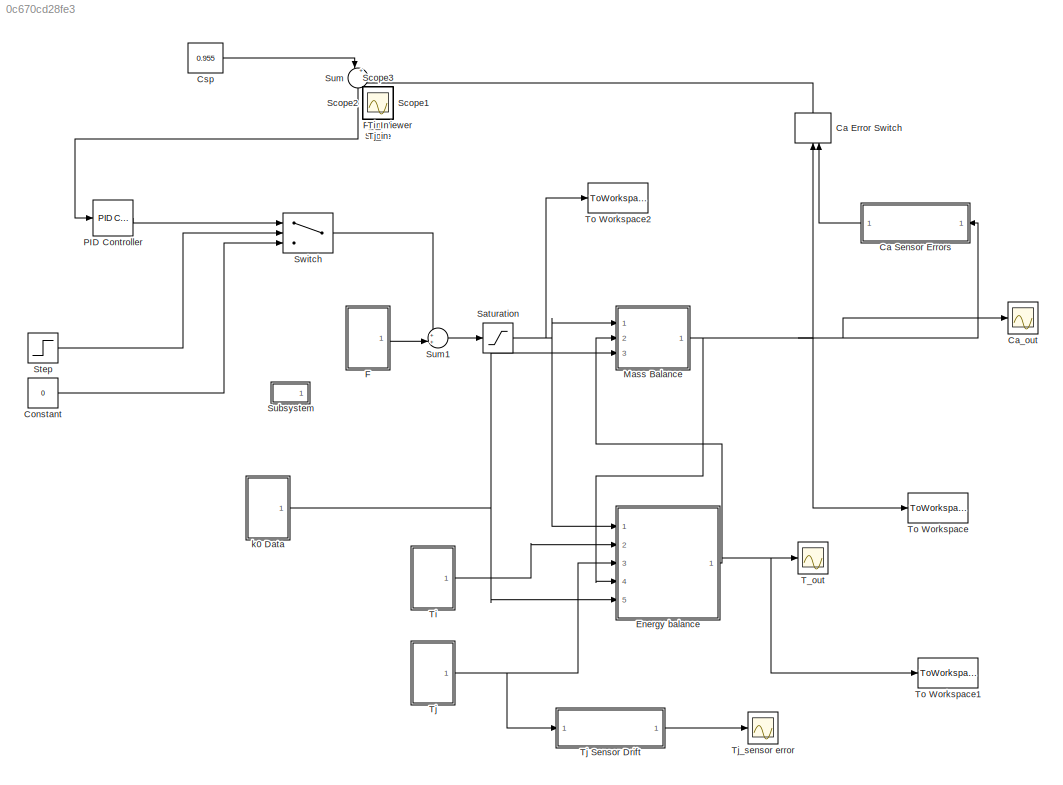
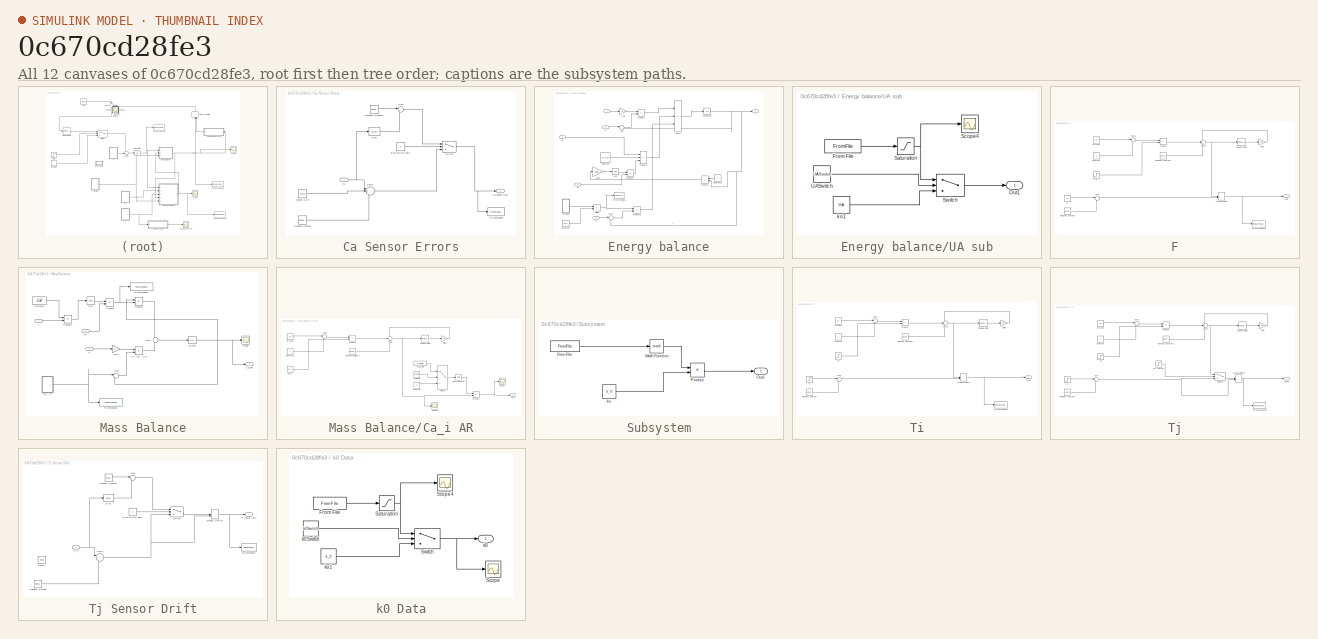
[diagram: thumbnail index - all 12 canvases of the model, root first then tree order]
MODEL slx_0c670cd28fe3
KIND model
CONFIG AbsTol = auto
CONFIG EnableMultiTasking = off
CONFIG FixedStep = auto
CONFIG MaxStep = auto
CONFIG MinStep = auto
CONFIG RelTol = 1e-3
CONFIG SampleTimeConstraint = Unconstrained
CONFIG Solver = VariableStepAuto
CONFIG SolverName = VariableStepAuto
CONFIG StartTime = 0.0
CONFIG StopTime = dur
BLOCK [ManualSwitch] Ca Error Switch
  CurrentSetting = 0
  NameLocation = right
BLOCK [SubSystem] Ca Sensor Errors
  Ports = [1, 1]
  RequestExecContextInheritance = off
BLOCK [Bias] Ca Sensor Errors/Bias
  Bias = 0.015
  SaturateOnIntegerOverflow = off
BLOCK [Constant] Ca Sensor Errors/Bias switch logic
  Value = 0
BLOCK [Inport] Ca Sensor Errors/Ca
BLOCK [Outport] Ca Sensor Errors/Ca_sensor fault
BLOCK [RandomNumber] Ca Sensor Errors/Random Number
  SampleTime = 0.1
  Variance = 0.0001
BLOCK [RandomNumber] Ca Sensor Errors/Random Number1
  SampleTime = 0.1
  Variance = 1*10^-6
BLOCK [Reference] Ca Sensor Errors/Sensor Drift  REF=simulink/Sources/Ramp
  Ports = [0, 1]
  SourceBlock = simulink/Sources/Ramp
  SourceProductBaseCode = SL
  SourceType = Ramp
BLOCK [Sum] Ca Sensor Errors/Sum
  Inputs = |++
  Ports = [2, 1]
BLOCK [Sum] Ca Sensor Errors/Sum2
  Inputs = |+|+|+
  Ports = [3, 1]
BLOCK [Switch] Ca Sensor Errors/Switch
  Criteria = u2 ~= 0
  InputSameDT = off
  SaturateOnIntegerOverflow = off
BLOCK [ToWorkspace] Ca Sensor Errors/To Workspace
  FixptAsFi = on
  MaxDataPoints = inf
  Ports = [1]
  SampleTime = t_samp
  SaveFormat = Timeseries
  VariableName = Ca_sensor
BLOCK [Scope] Ca_out
  Floating = off
  NumInputPorts = 1
  Ports = [1]
  ScopeSpecificationString = Simulink.scopes.TimeScopeBlockCfg('CurrentConfiguration', extmgr.ConfigurationSet(extmgr.Configuration('Core','General UI',true),extmgr.Configuration('Core','Source UI',true),extmgr.Configuration('Sources','WiredSimulink',true,'DataLoggingVariableName','ScopeData1'),extmgr.Configuration('Visuals','Time Domain',true,'SerializedDisplays',{struct('MinYLimReal','-0.11988','MaxYLimReal','1.08945','YLab...<+1425ch>
BLOCK [Constant] Constant
  Value = 0
BLOCK [Constant] Csp
  Value = 0.955
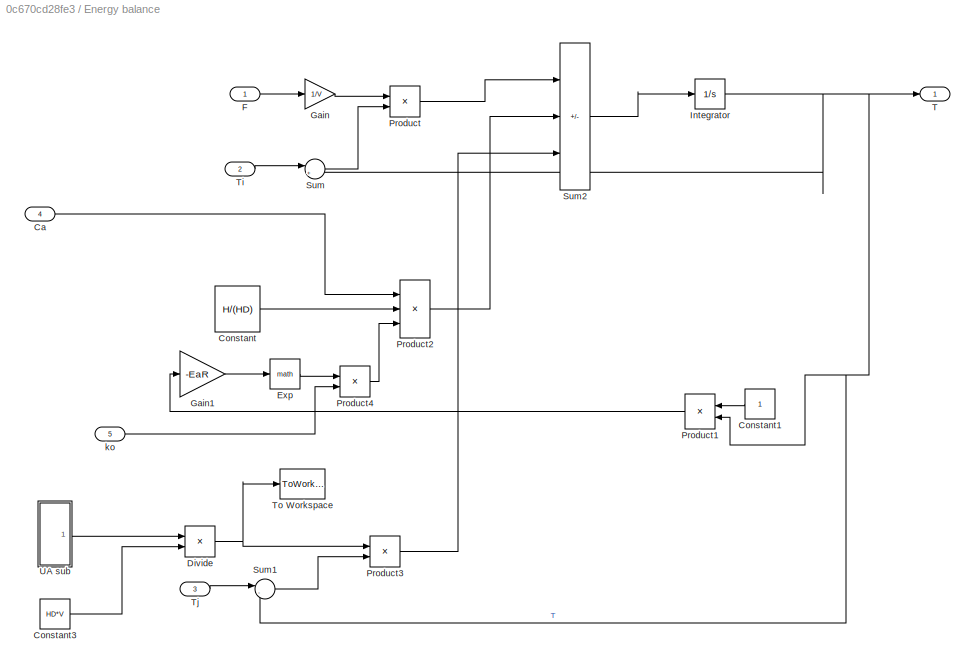
BLOCK [SubSystem] Energy balance
  Ports = [5, 1]
  RequestExecContextInheritance = off
BLOCK [Inport] Energy balance/Ca
  Port = 4
BLOCK [Constant] Energy balance/Constant
  Value = H/(HD)
BLOCK [Constant] Energy balance/Constant1
BLOCK [Constant] Energy balance/Constant3
  Value = HD*V
BLOCK [Product] Energy balance/Divide
  Inputs = */
  Ports = [2, 1]
BLOCK [Math] Energy balance/Exp
  Ports = [1, 1]
  SignedPower = on
BLOCK [Inport] Energy balance/F
BLOCK [Gain] Energy balance/Gain
  Gain = 1/V
BLOCK [Gain] Energy balance/Gain1
  Gain = -EaR
BLOCK [Integrator] Energy balance/Integrator
  InitialCondition = 312.4
  Ports = [1, 1]
BLOCK [Product] Energy balance/Product
  Ports = [2, 1]
BLOCK [Product] Energy balance/Product1
  Inputs = */
  Ports = [2, 1]
BLOCK [Product] Energy balance/Product2
  Inputs = 3
  Ports = [3, 1]
BLOCK [Product] Energy balance/Product3
  Ports = [2, 1]
BLOCK [Product] Energy balance/Product4
  Ports = [2, 1]
BLOCK [Sum] Energy balance/Sum
  Inputs = |+-
  Ports = [2, 1]
BLOCK [Sum] Energy balance/Sum1
  Inputs = |-+
  Ports = [2, 1]
BLOCK [Sum] Energy balance/Sum2
  IconShape = rectangular
  Inputs = |++-
  Ports = [3, 1]
BLOCK [Outport] Energy balance/T
BLOCK [Inport] Energy balance/Ti
  Port = 2
BLOCK [Inport] Energy balance/Tj
  Port = 3
BLOCK [ToWorkspace] Energy balance/To Workspace
  FixptAsFi = on
  MaxDataPoints = inf
  Ports = [1]
  SampleTime = t_samp
  SaveFormat = Timeseries
  VariableName = UA_rate
BLOCK [SubSystem] Energy balance/UA sub
  Ports = [0, 1]
  RequestExecContextInheritance = off
BLOCK [FromFile] Energy balance/UA sub/From File
  FileName = UAData.mat
  SampleTime = 0.01
BLOCK [Outport] Energy balance/UA sub/Out1
BLOCK [Saturate] Energy balance/UA sub/Saturation
  LowerLimit = 0
  UpperLimit = 60000
BLOCK [Scope] Energy balance/UA sub/Scope4
  Floating = off
  NumInputPorts = 1
  Ports = [1]
  ScopeSpecificationString = Simulink.scopes.TimeScopeBlockCfg('CurrentConfiguration', extmgr.ConfigurationSet(extmgr.Configuration('Core','General UI',true),extmgr.Configuration('Core','Source UI',true),extmgr.Configuration('Sources','WiredSimulink',true,'DataLoggingVariableName','ScopeData1'),extmgr.Configuration('Visuals','Time Domain',true,'SerializedDisplays',{struct('MinYLimReal','35245.31053','MaxYLimReal','51639.40994...<+1453ch>
BLOCK [Switch] Energy balance/UA sub/Switch
  Criteria = u2 > Threshold
  InputSameDT = off
  SaturateOnIntegerOverflow = off
BLOCK [Constant] Energy balance/UA sub/UASwitch
  Value = UASwitch
BLOCK [Constant] Energy balance/UA sub/ko1
  Value = HA
BLOCK [Inport] Energy balance/ko
  Port = 5
BLOCK [SubSystem] F
  Ports = [0, 1]
  RequestExecContextInheritance = off
BLOCK [Constant] F/AR const
  Value = 0.9
BLOCK [Constant] F/Constant
BLOCK [Constant] F/F
  Value = 50
BLOCK [Step] F/F1
  After = 50
  Before = 50
  SampleTime = 0
  Time = 0
BLOCK [Outport] F/FOut
BLOCK [Gain] F/Gain
  Gain = 0.9
BLOCK [ManualSwitch] F/Manual Switch
BLOCK [Product] F/Product
  Ports = [2, 1]
BLOCK [RandomNumber] F/Random Number
  SampleTime = 0.1
  Variance = 1.9
BLOCK [RandomNumber] F/Random Number1
  SampleTime = 0.1
  Variance = 1.9
BLOCK [Sum] F/Sum
  Inputs = |++
  Ports = [2, 1]
BLOCK [Sum] F/Sum1
  Inputs = |-+
  Ports = [2, 1]
BLOCK [Sum] F/Sum2
  Inputs = +++
  Ports = [3, 1]
BLOCK [Reference] F/Tapped Delay  REF=simulink/Discrete/Tapped Delay
  Ports = [1, 1]
  SourceBlock = simulink/Discrete/Tapped Delay
  SourceProductBaseCode = SL
  SourceType = Tapped Delay Line
BLOCK [ToWorkspace] F/To Workspace2
  FixptAsFi = on
  MaxDataPoints = inf
  Ports = [1]
  SampleTime = t_samp
  SaveFormat = Timeseries
  VariableName = F_in
BLOCK [Scope] F_in Viewer
  Floating = off
  IOType = viewer
  NumInputPorts = 1
  Ports = []
  ScopeSpecificationString = Simulink.scopes.TimeScopeBlockCfg('CurrentConfiguration', extmgr.ConfigurationSet(extmgr.Configuration('Core','General UI',true),extmgr.Configuration('Core','Source UI',true),extmgr.Configuration('Sources','WiredSimulink',true,'DataLoggingVariableName','ScopeData1'),extmgr.Configuration('Visuals','Time Domain',true,'SerializedDisplays',{struct('MinYLimReal','37.9889','MaxYLimReal','62.35149','YLab...<+1389ch>
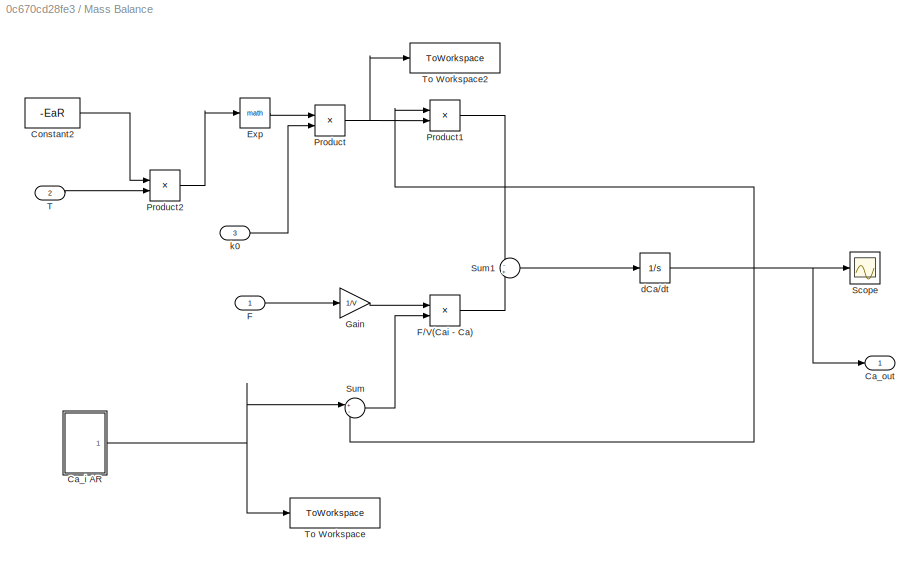
BLOCK [SubSystem] Mass Balance
  Ports = [3, 1]
  RequestExecContextInheritance = off
BLOCK [SubSystem] Mass Balance/Ca_i AR
  Ports = [0, 1]
  RequestExecContextInheritance = off
BLOCK [Constant] Mass Balance/Ca_i AR/AR const
  Value = 0.9
BLOCK [Constant] Mass Balance/Ca_i AR/CaSwitch
  Value = CaSwitch
BLOCK [Constant] Mass Balance/Ca_i AR/Ca_i
  Value = Ca_i
BLOCK [Constant] Mass Balance/Ca_i AR/Constant
  Value = 0
BLOCK [Constant] Mass Balance/Ca_i AR/Constant1
BLOCK [FromFile] Mass Balance/Ca_i AR/From File
  FileName = CaData.mat
  SampleTime = 0.01
BLOCK [Gain] Mass Balance/Ca_i AR/Gain2
  Gain = 0.9
BLOCK [Math] Mass Balance/Ca_i AR/Math Function
  Ports = [1, 1]
  SignedPower = on
BLOCK [Outport] Mass Balance/Ca_i AR/Out1
BLOCK [Product] Mass Balance/Ca_i AR/Product
  Ports = [2, 1]
BLOCK [Product] Mass Balance/Ca_i AR/Product1
  Ports = [2, 1]
BLOCK [RandomNumber] Mass Balance/Ca_i AR/Random Number1
  SampleTime = 0.1
  Variance = 0.00002
BLOCK [Scope] Mass Balance/Ca_i AR/Scope
  Floating = off
  NumInputPorts = 1
  Ports = [1]
  ScopeSpecificationString = Simulink.scopes.TimeScopeBlockCfg('CurrentConfiguration', extmgr.ConfigurationSet(extmgr.Configuration('Core','General UI',true),extmgr.Configuration('Core','Source UI',true),extmgr.Configuration('Sources','WiredSimulink',true,'DataLoggingVariableName','ScopeData1'),extmgr.Configuration('Visuals','Time Domain',true,'SerializedDisplays',{struct('MinYLimReal','0.93746','MaxYLimReal','1.05355','YLabe...<+1393ch>
BLOCK [Scope] Mass Balance/Ca_i AR/Scope1
  Floating = off
  NumInputPorts = 1
  Ports = [1]
  ScopeSpecificationString = Simulink.scopes.TimeScopeBlockCfg('CurrentConfiguration', extmgr.ConfigurationSet(extmgr.Configuration('Core','General UI',true),extmgr.Configuration('Core','Source UI',true),extmgr.Configuration('Sources','WiredSimulink',true,'DataLoggingVariableName','ScopeData3'),extmgr.Configuration('Visuals','Time Domain',true,'SerializedDisplays',{struct('MinYLimReal','0.95392','MaxYLimReal','1.05172','YLabe...<+1389ch>
BLOCK [Sum] Mass Balance/Ca_i AR/Sum2
  Inputs = |-+
  Ports = [2, 1]
BLOCK [Sum] Mass Balance/Ca_i AR/Sum3
  Inputs = +++
  Ports = [3, 1]
BLOCK [Switch] Mass Balance/Ca_i AR/Switch
  Criteria = u2 > Threshold
  InputSameDT = off
  SaturateOnIntegerOverflow = off
BLOCK [Reference] Mass Balance/Ca_i AR/Tapped Delay  REF=simulink/Discrete/Tapped Delay
  Ports = [1, 1]
  SourceBlock = simulink/Discrete/Tapped Delay
  SourceProductBaseCode = SL
  SourceType = Tapped Delay Line
BLOCK [Outport] Mass Balance/Ca_out
BLOCK [Constant] Mass Balance/Constant2
  Value = -EaR
BLOCK [Math] Mass Balance/Exp
  Ports = [1, 1]
  SignedPower = on
BLOCK [Inport] Mass Balance/F
BLOCK [Product] Mass Balance/F//V(Cai - Ca)
  Ports = [2, 1]
BLOCK [Gain] Mass Balance/Gain
  Gain = 1/V
BLOCK [Product] Mass Balance/Product
  Ports = [2, 1]
BLOCK [Product] Mass Balance/Product1
  Ports = [2, 1]
BLOCK [Product] Mass Balance/Product2
  Inputs = */
  Ports = [2, 1]
BLOCK [Scope] Mass Balance/Scope
  Floating = off
  NumInputPorts = 1
  Ports = [1]
  ScopeSpecificationString = Simulink.scopes.TimeScopeBlockCfg('CurrentConfiguration', extmgr.ConfigurationSet(extmgr.Configuration('Core','General UI',true),extmgr.Configuration('Core','Source UI',true),extmgr.Configuration('Sources','WiredSimulink',true),extmgr.Configuration('Visuals','Time Domain',true,'SerializedDisplays',{struct('MinYLimReal','-0.80257','MaxYLimReal','7.22317','YLabelReal','','MinYLimMag','0.00000','MaxY...<+1330ch>
BLOCK [Sum] Mass Balance/Sum
  Inputs = +-
  Ports = [2, 1]
BLOCK [Sum] Mass Balance/Sum1
  Inputs = -+
  Ports = [2, 1]
BLOCK [Inport] Mass Balance/T
  Port = 2
BLOCK [ToWorkspace] Mass Balance/To Workspace
  MaxDataPoints = inf
  Ports = [1]
  SampleTime = t_samp
  SaveFormat = Timeseries
  VariableName = Ca_in
BLOCK [ToWorkspace] Mass Balance/To Workspace2
  FixptAsFi = on
  MaxDataPoints = inf
  Ports = [1]
  SampleTime = t_samp
  SaveFormat = Timeseries
  VariableName = k_rate
BLOCK [Integrator] Mass Balance/dCa//dt
  InitialCondition = 0.952
  Ports = [1, 1]
BLOCK [Inport] Mass Balance/k0
  Port = 3
BLOCK [Reference] PID Controller  REF=simulink/Continuous/PID Controller
  Ports = [1, 1]
  SourceBlock = simulink/Continuous/PID Controller
  SourceProductBaseCode = SL
  SourceType = PID 1dof
BLOCK [Saturate] Saturation
  LowerLimit = 0
  UpperLimit = 5000
BLOCK [Scope] Scope
  Floating = off
  IOType = viewer
  NumInputPorts = 1
  Ports = []
  ScopeSpecificationString = Simulink.scopes.TimeScopeBlockCfg('CurrentConfiguration', extmgr.ConfigurationSet(extmgr.Configuration('Core','General UI',true),extmgr.Configuration('Core','Source UI',true),extmgr.Configuration('Sources','WiredSimulink',true,'DataLoggingVariableName','ScopeData1'),extmgr.Configuration('Visuals','Time Domain',true,'SerializedDisplays',{struct('MinYLimReal','-4736.65689','MaxYLimReal','42769.73309...<+1444ch>
BLOCK [Scope] Scope1
  Floating = off
  IOType = viewer
  NumInputPorts = 1
  Ports = []
  ScopeSpecificationString = Simulink.scopes.TimeScopeBlockCfg('CurrentConfiguration', extmgr.ConfigurationSet(extmgr.Configuration('Core','General UI',true),extmgr.Configuration('Core','Source UI',true),extmgr.Configuration('Sources','WiredSimulink',true,'DataLoggingVariableName','ScopeData3'),extmgr.Configuration('Visuals','Time Domain',true,'SerializedDisplays',{struct('MinYLimReal','-0.16351','MaxYLimReal','1.12454','YLab...<+1453ch>
BLOCK [Scope] Scope2
  Floating = off
  IOType = viewer
  NumInputPorts = 1
  Ports = []
  ScopeSpecificationString = Simulink.scopes.TimeScopeBlockCfg('CurrentConfiguration', extmgr.ConfigurationSet(extmgr.Configuration('Core','General UI',true),extmgr.Configuration('Core','Source UI',true),extmgr.Configuration('Sources','WiredSimulink',true,'DataLoggingVariableName','ScopeData1'),extmgr.Configuration('Visuals','Time Domain',true,'SerializedDisplays',{struct('MinYLimReal','-609.27013','MaxYLimReal','5623.25224',...<+1441ch>
BLOCK [Scope] Scope3
  Floating = off
  IOType = viewer
  NumInputPorts = 1
  Ports = []
  ScopeSpecificationString = Simulink.scopes.TimeScopeBlockCfg('CurrentConfiguration', extmgr.ConfigurationSet(extmgr.Configuration('Core','General UI',true),extmgr.Configuration('Core','Source UI',true),extmgr.Configuration('Sources','WiredSimulink',true,'DataLoggingVariableName','ScopeData1'),extmgr.Configuration('Visuals','Time Domain',true,'SerializedDisplays',{struct('MinYLimReal','0.94239','MaxYLimReal','1.02794','YLabe...<+1385ch>
BLOCK [Step] Step
  Before = -1
  SampleTime = 0
  Time = 0
BLOCK [SubSystem] Subsystem
  Ports = [0, 1]
  RequestExecContextInheritance = off
BLOCK [FromFile] Subsystem/From File
  FileName = k0Data.mat
  SampleTime = 0.01
BLOCK [Math] Subsystem/Math Function
  Ports = [1, 1]
  SignedPower = on
BLOCK [Outport] Subsystem/Out1
BLOCK [Product] Subsystem/Product
  Ports = [2, 1]
BLOCK [Constant] Subsystem/ko
  Value = k_0
BLOCK [Sum] Sum
  Inputs = |+-
  NameLocation = left
  Ports = [2, 1]
BLOCK [Sum] Sum1
  Inputs = ++|
  Ports = [2, 1]
BLOCK [Switch] Switch
  Criteria = u2 > Threshold
  InputSameDT = off
  SaturateOnIntegerOverflow = off
BLOCK [Scope] T_out
  Floating = off
  NumInputPorts = 1
  Ports = [1]
  ScopeSpecificationString = Simulink.scopes.TimeScopeBlockCfg('CurrentConfiguration', extmgr.ConfigurationSet(extmgr.Configuration('Core','General UI',true),extmgr.Configuration('Core','Source UI',true),extmgr.Configuration('Sources','WiredSimulink',true,'DataLoggingVariableName','ScopeData2'),extmgr.Configuration('Visuals','Time Domain',true,'SerializedDisplays',{struct('MinYLimReal','264.64039','MaxYLimReal','591.58021','Y...<+1460ch>
BLOCK [SubSystem] Ti
  Ports = [0, 1]
  RequestExecContextInheritance = off
BLOCK [Constant] Ti/AR const
  Value = 0.9
BLOCK [Constant] Ti/Constant
BLOCK [Gain] Ti/Gain
  Gain = 0.9
BLOCK [ManualSwitch] Ti/Manual Switch
BLOCK [Product] Ti/Product
  Ports = [2, 1]
BLOCK [RandomNumber] Ti/Random Number
  SampleTime = 0.1
  Variance = 0.475
BLOCK [RandomNumber] Ti/Random Number1
  SampleTime = 0.1
  Variance = 0.475
BLOCK [Sum] Ti/Sum
  Inputs = |++
  Ports = [2, 1]
BLOCK [Sum] Ti/Sum1
  Inputs = |-+
  Ports = [2, 1]
BLOCK [Sum] Ti/Sum2
  Inputs = +++
  Ports = [3, 1]
BLOCK [Reference] Ti/Tapped Delay  REF=simulink/Discrete/Tapped Delay
  Ports = [1, 1]
  SourceBlock = simulink/Discrete/Tapped Delay
  SourceProductBaseCode = SL
  SourceType = Tapped Delay Line
BLOCK [Step] Ti/Ti
  After = 350
  Before = 350
  SampleTime = 0
  Time = 0
BLOCK [Step] Ti/Ti1
  After = 350
  Before = 350
  SampleTime = 0
  Time = 0
BLOCK [Outport] Ti/Ti_Out
BLOCK [ToWorkspace] Ti/To Workspace2
  FixptAsFi = on
  MaxDataPoints = inf
  Ports = [1]
  SampleTime = t_samp
  SaveFormat = Timeseries
  VariableName = Ti_in
BLOCK [Scope] Ti_In
  Floating = off
  IOType = viewer
  NumInputPorts = 1
  Ports = []
  ScopeSpecificationString = Simulink.scopes.TimeScopeBlockCfg('CurrentConfiguration', extmgr.ConfigurationSet(extmgr.Configuration('Core','General UI',true),extmgr.Configuration('Core','Source UI',true),extmgr.Configuration('Sources','WiredSimulink',true,'DataLoggingVariableName','ScopeData1'),extmgr.Configuration('Visuals','Time Domain',true,'SerializedDisplays',{struct('MinYLimReal','342.89797','MaxYLimReal','357.97003','Y...<+1428ch>
BLOCK [SubSystem] Tj
  Ports = [0, 1]
  RequestExecContextInheritance = off
BLOCK [SubSystem] Tj Sensor Drift
  Ports = [1, 1]
  RequestExecContextInheritance = off
BLOCK [Bias] Tj Sensor Drift/Bias
  Bias = 0.5
  SaturateOnIntegerOverflow = off
BLOCK [Constant] Tj Sensor Drift/Bias switch logic
  Value = 0
BLOCK [ManualSwitch] Tj Sensor Drift/Manual Switch
  CurrentSetting = 0
BLOCK [Reference] Tj Sensor Drift/Ramp  REF=simulink/Sources/Ramp
  Ports = [0, 1]
  SourceBlock = simulink/Sources/Ramp
  SourceProductBaseCode = SL
  SourceType = Ramp
BLOCK [RandomNumber] Tj Sensor Drift/Random Number
  SampleTime = 0.1
  Variance = 0.05
BLOCK [RandomNumber] Tj Sensor Drift/Random Number1
  SampleTime = 0.1
  Variance = 0.05
BLOCK [Sum] Tj Sensor Drift/Sum
  Inputs = |++
  Ports = [2, 1]
BLOCK [Sum] Tj Sensor Drift/Sum2
  Inputs = |+|+|+
  Ports = [3, 1]
BLOCK [Switch] Tj Sensor Drift/Switch
  Criteria = u2 ~= 0
  InputSameDT = off
  SaturateOnIntegerOverflow = off
BLOCK [Inport] Tj Sensor Drift/Tj_in
BLOCK [Outport] Tj Sensor Drift/Tj_sensor fault
BLOCK [ToWorkspace] Tj Sensor Drift/To Workspace
  FixptAsFi = on
  MaxDataPoints = inf
  Ports = [1]
  SampleTime = t_samp
  SaveFormat = Timeseries
  VariableName = Tj_sensor
BLOCK [Constant] Tj/AR const
  Value = 0.9
BLOCK [Constant] Tj/Constant
BLOCK [Step] Tj/Err Criteria
  SampleTime = 0
  Time = 0
BLOCK [Gain] Tj/Gain
  Gain = 0.9
BLOCK [ManualSwitch] Tj/Manual Switch
BLOCK [Product] Tj/Product
  Ports = [2, 1]
BLOCK [RandomNumber] Tj/Random Number
  SampleTime = 0.1
  Variance = 0.005
BLOCK [RandomNumber] Tj/Random Number1
  SampleTime = 0.1
  Variance = 0.005
BLOCK [Sum] Tj/Sum
  Inputs = |++
  Ports = [2, 1]
BLOCK [Sum] Tj/Sum1
  Inputs = |-+
  Ports = [2, 1]
BLOCK [Sum] Tj/Sum2
  Inputs = +++
  Ports = [3, 1]
BLOCK [Switch] Tj/Switch1
  Criteria = u2 > Threshold
  InputSameDT = off
  SaturateOnIntegerOverflow = off
BLOCK [Reference] Tj/Tapped Delay  REF=simulink/Discrete/Tapped Delay
  Ports = [1, 1]
  SourceBlock = simulink/Discrete/Tapped Delay
  SourceProductBaseCode = SL
  SourceType = Tapped Delay Line
BLOCK [Step] Tj/Tj
  After = 290
  Before = 290
  SampleTime = 0
  Time = 10
BLOCK [Step] Tj/Tj1
  After = Tj_o
  Before = Tj_i
  SampleTime = 0
  Time = t_Tj
BLOCK [Outport] Tj/Tj_Out
BLOCK [ToWorkspace] Tj/To Workspace2
  FixptAsFi = on
  MaxDataPoints = inf
  Ports = [1]
  SampleTime = 0.1
  SaveFormat = Timeseries
  VariableName = Tj_in
BLOCK [Scope] Tj_in
  Floating = off
  IOType = viewer
  NumInputPorts = 1
  Ports = []
  ScopeSpecificationString = Simulink.scopes.TimeScopeBlockCfg('CurrentConfiguration', extmgr.ConfigurationSet(extmgr.Configuration('Core','General UI',true),extmgr.Configuration('Core','Source UI',true),extmgr.Configuration('Sources','WiredSimulink',true,'DataLoggingVariableName','ScopeData2'),extmgr.Configuration('Visuals','Time Domain',true,'SerializedDisplays',{struct('MinYLimReal','286.51622','MaxYLimReal','293.36189','Y...<+1431ch>
BLOCK [Scope] Tj_sensor error
  Floating = off
  NumInputPorts = 1
  Ports = [1]
  ScopeSpecificationString = Simulink.scopes.TimeScopeBlockCfg('CurrentConfiguration', extmgr.ConfigurationSet(extmgr.Configuration('Core','General UI',true),extmgr.Configuration('Core','Source UI',true),extmgr.Configuration('Sources','WiredSimulink',true,'DataLoggingVariableName','ScopeData2'),extmgr.Configuration('Visuals','Time Domain',true,'SerializedDisplays',{struct('MinYLimReal','285.41455','MaxYLimReal','294.42502','Y...<+1442ch>
BLOCK [ToWorkspace] To Workspace
  FixptAsFi = on
  MaxDataPoints = inf
  Ports = [1]
  SampleTime = t_samp
  SaveFormat = Timeseries
  VariableName = Ca_out
BLOCK [ToWorkspace] To Workspace1
  FixptAsFi = on
  MaxDataPoints = inf
  Ports = [1]
  SampleTime = t_samp
  SaveFormat = Timeseries
  VariableName = T_out
BLOCK [ToWorkspace] To Workspace2
  FixptAsFi = on
  MaxDataPoints = inf
  Ports = [1]
  SampleTime = t_samp
  SaveFormat = Timeseries
  VariableName = F_crt
BLOCK [SubSystem] k0 Data
  Ports = [0, 1]
  RequestExecContextInheritance = off
BLOCK [FromFile] k0 Data/From File
  FileName = k0Data.mat
  SampleTime = 0.01
BLOCK [Saturate] k0 Data/Saturation
  LowerLimit = 0
  UpperLimit = 10e10
BLOCK [Scope] k0 Data/Scope
  Floating = off
  NumInputPorts = 1
  Ports = [1]
  ScopeSpecificationString = Simulink.scopes.TimeScopeBlockCfg('CurrentConfiguration', extmgr.ConfigurationSet(extmgr.Configuration('Core','General UI',true),extmgr.Configuration('Core','Source UI',true),extmgr.Configuration('Sources','WiredSimulink',true,'DataLoggingVariableName','ScopeData2'),extmgr.Configuration('Visuals','Time Domain',true,'SerializedDisplays',{struct('MinYLimReal','62000000000.00000','MaxYLimReal','82000...<+1472ch>
BLOCK [Scope] k0 Data/Scope4
  Floating = off
  NumInputPorts = 1
  Ports = [1]
  ScopeSpecificationString = Simulink.scopes.TimeScopeBlockCfg('CurrentConfiguration', extmgr.ConfigurationSet(extmgr.Configuration('Core','General UI',true),extmgr.Configuration('Core','Source UI',true),extmgr.Configuration('Sources','WiredSimulink',true,'DataLoggingVariableName','ScopeData1'),extmgr.Configuration('Visuals','Time Domain',true,'SerializedDisplays',{struct('MinYLimReal','2162166966.69649','MaxYLimReal','797597...<+1471ch>
BLOCK [Switch] k0 Data/Switch
  Criteria = u2 > Threshold
  InputSameDT = off
  SaturateOnIntegerOverflow = off
BLOCK [Outport] k0 Data/k0
BLOCK [Constant] k0 Data/k0Switch
  Value = k0Switch
BLOCK [Constant] k0 Data/ko1
  Value = k_0
LINE Ca Error Switch:1 -> Sum:2
LINE Ca Sensor Errors/Bias switch logic:1 -> Ca Sensor Errors/Switch:2
LINE Ca Sensor Errors/Bias:1 -> Ca Sensor Errors/Sum:2
NET Ca Sensor Errors/Ca:1 -> Ca Sensor Errors/Bias:1, Ca Sensor Errors/Sum2:1
LINE Ca Sensor Errors/Random Number1:1 -> Ca Sensor Errors/Sum:1
LINE Ca Sensor Errors/Random Number:1 -> Ca Sensor Errors/Sum2:3
LINE Ca Sensor Errors/Sensor Drift:1 -> Ca Sensor Errors/Sum2:2
LINE Ca Sensor Errors/Sum2:1 -> Ca Sensor Errors/Switch:3
LINE Ca Sensor Errors/Sum:1 -> Ca Sensor Errors/Switch:1
NET Ca Sensor Errors/Switch:1 -> Ca Sensor Errors/Ca_sensor fault:1, Ca Sensor Errors/To Workspace:1
LINE Ca Sensor Errors:1 -> Ca Error Switch:2
LINE Constant:1 -> Switch:3
LINE Csp:1 -> Sum:1
LINE Energy balance/Ca:1 -> Energy balance/Product2:1
LINE Energy balance/Constant1:1 -> Energy balance/Product1:1
LINE Energy balance/Constant3:1 -> Energy balance/Divide:2
LINE Energy balance/Constant:1 -> Energy balance/Product2:2
NET Energy balance/Divide:1 -> Energy balance/Product3:1, Energy balance/To Workspace:1
LINE Energy balance/Exp:1 -> Energy balance/Product4:1
LINE Energy balance/F:1 -> Energy balance/Gain:1
LINE Energy balance/Gain1:1 -> Energy balance/Exp:1
LINE Energy balance/Gain:1 -> Energy balance/Product:1
NET Energy balance/Integrator:1 -> Energy balance/Product1:2, Energy balance/Sum1:2, Energy balance/Sum:2, Energy balance/T:1
LINE Energy balance/Product1:1 -> Energy balance/Gain1:1
LINE Energy balance/Product2:1 -> Energy balance/Sum2:2
LINE Energy balance/Product3:1 -> Energy balance/Sum2:3
LINE Energy balance/Product4:1 -> Energy balance/Product2:3
LINE Energy balance/Product:1 -> Energy balance/Sum2:1
LINE Energy balance/Sum1:1 -> Energy balance/Product3:2
LINE Energy balance/Sum2:1 -> Energy balance/Integrator:1
LINE Energy balance/Sum:1 -> Energy balance/Product:2
LINE Energy balance/Ti:1 -> Energy balance/Sum:1
LINE Energy balance/Tj:1 -> Energy balance/Sum1:1
LINE Energy balance/UA sub/From File:1 -> Energy balance/UA sub/Saturation:1
NET Energy balance/UA sub/Saturation:1 -> Energy balance/UA sub/Scope4:1, Energy balance/UA sub/Switch:1
LINE Energy balance/UA sub/Switch:1 -> Energy balance/UA sub/Out1:1
LINE Energy balance/UA sub/UASwitch:1 -> Energy balance/UA sub/Switch:2
LINE Energy balance/UA sub/ko1:1 -> Energy balance/UA sub/Switch:3
LINE Energy balance/UA sub:1 -> Energy balance/Divide:1
LINE Energy balance/ko:1 -> Energy balance/Product4:2
NET Energy balance:1 -> Mass Balance:2, T_out:1, To Workspace1:1
LINE F/AR const:1 -> F/Sum1:1
LINE F/Constant:1 -> F/Sum1:2
LINE F/F1:1 -> F/Product:2
LINE F/F:1 -> F/Sum:1
LINE F/Gain:1 -> F/Sum2:1
NET F/Manual Switch:1 -> F/FOut:1, F/To Workspace2:1
LINE F/Product:1 -> F/Sum2:2
LINE F/Random Number1:1 -> F/Sum2:3
LINE F/Random Number:1 -> F/Sum:2
LINE F/Sum1:1 -> F/Product:1
NET F/Sum2:1 -> F/Manual Switch:1, F/Tapped Delay:1
LINE F/Sum:1 -> F/Manual Switch:2
LINE F/Tapped Delay:1 -> F/Gain:1
LINE F:1 -> Sum1:2
LINE Mass Balance/Ca_i AR/AR const:1 -> Mass Balance/Ca_i AR/Sum2:1
LINE Mass Balance/Ca_i AR/CaSwitch:1 -> Mass Balance/Ca_i AR/Switch:2
LINE Mass Balance/Ca_i AR/Ca_i:1 -> Mass Balance/Ca_i AR/Product:2
LINE Mass Balance/Ca_i AR/Constant1:1 -> Mass Balance/Ca_i AR/Sum2:2
LINE Mass Balance/Ca_i AR/Constant:1 -> Mass Balance/Ca_i AR/Switch:3
LINE Mass Balance/Ca_i AR/From File:1 -> Mass Balance/Ca_i AR/Switch:1
LINE Mass Balance/Ca_i AR/Gain2:1 -> Mass Balance/Ca_i AR/Sum3:1
LINE Mass Balance/Ca_i AR/Math Function:1 -> Mass Balance/Ca_i AR/Product1:1
NET Mass Balance/Ca_i AR/Product1:1 -> Mass Balance/Ca_i AR/Out1:1, Mass Balance/Ca_i AR/Scope:1
LINE Mass Balance/Ca_i AR/Product:1 -> Mass Balance/Ca_i AR/Sum3:2
LINE Mass Balance/Ca_i AR/Random Number1:1 -> Mass Balance/Ca_i AR/Sum3:3
LINE Mass Balance/Ca_i AR/Sum2:1 -> Mass Balance/Ca_i AR/Product:1
NET Mass Balance/Ca_i AR/Sum3:1 -> Mass Balance/Ca_i AR/Product1:2, Mass Balance/Ca_i AR/Scope1:1, Mass Balance/Ca_i AR/Tapped Delay:1
LINE Mass Balance/Ca_i AR/Switch:1 -> Mass Balance/Ca_i AR/Math Function:1
LINE Mass Balance/Ca_i AR/Tapped Delay:1 -> Mass Balance/Ca_i AR/Gain2:1
NET Mass Balance/Ca_i AR:1 -> Mass Balance/Sum:1, Mass Balance/To Workspace:1
LINE Mass Balance/Constant2:1 -> Mass Balance/Product2:1
LINE Mass Balance/Exp:1 -> Mass Balance/Product:1
LINE Mass Balance/F//V(Cai - Ca):1 -> Mass Balance/Sum1:2
LINE Mass Balance/F:1 -> Mass Balance/Gain:1
LINE Mass Balance/Gain:1 -> Mass Balance/F//V(Cai - Ca):1
LINE Mass Balance/Product1:1 -> Mass Balance/Sum1:1
LINE Mass Balance/Product2:1 -> Mass Balance/Exp:1
NET Mass Balance/Product:1 -> Mass Balance/Product1:2, Mass Balance/To Workspace2:1
LINE Mass Balance/Sum1:1 -> Mass Balance/dCa//dt:1
LINE Mass Balance/Sum:1 -> Mass Balance/F//V(Cai - Ca):2
LINE Mass Balance/T:1 -> Mass Balance/Product2:2
NET Mass Balance/dCa//dt:1 -> Mass Balance/Ca_out:1, Mass Balance/Product1:1, Mass Balance/Scope:1, Mass Balance/Sum:2
LINE Mass Balance/k0:1 -> Mass Balance/Product:2
NET Mass Balance:1 -> Ca Error Switch:1, Ca Sensor Errors:1, Ca_out:1, Energy balance:4, To Workspace:1
LINE PID Controller:1 -> Switch:1
NET Saturation:1 -> Energy balance:1, Mass Balance:1, To Workspace2:1
LINE Step:1 -> Switch:2
LINE Subsystem/From File:1 -> Subsystem/Math Function:1
LINE Subsystem/Math Function:1 -> Subsystem/Product:1
LINE Subsystem/Product:1 -> Subsystem/Out1:1
LINE Subsystem/ko:1 -> Subsystem/Product:2
LINE Sum1:1 -> Saturation:1
LINE Sum:1 -> PID Controller:1
LINE Switch:1 -> Sum1:1
LINE Ti/AR const:1 -> Ti/Sum1:1
LINE Ti/Constant:1 -> Ti/Sum1:2
LINE Ti/Gain:1 -> Ti/Sum2:1
NET Ti/Manual Switch:1 -> Ti/Ti_Out:1, Ti/To Workspace2:1
LINE Ti/Product:1 -> Ti/Sum2:2
LINE Ti/Random Number1:1 -> Ti/Sum2:3
LINE Ti/Random Number:1 -> Ti/Sum:2
LINE Ti/Sum1:1 -> Ti/Product:1
NET Ti/Sum2:1 -> Ti/Manual Switch:1, Ti/Tapped Delay:1
LINE Ti/Sum:1 -> Ti/Manual Switch:2
LINE Ti/Tapped Delay:1 -> Ti/Gain:1
LINE Ti/Ti1:1 -> Ti/Product:2
LINE Ti/Ti:1 -> Ti/Sum:1
LINE Ti:1 -> Energy balance:2
LINE Tj Sensor Drift/Bias switch logic:1 -> Tj Sensor Drift/Switch:2
LINE Tj Sensor Drift/Bias:1 -> Tj Sensor Drift/Sum:2
NET Tj Sensor Drift/Manual Switch:1 -> Tj Sensor Drift/Tj_sensor fault:1, Tj Sensor Drift/To Workspace:1
LINE Tj Sensor Drift/Random Number1:1 -> Tj Sensor Drift/Sum:1
LINE Tj Sensor Drift/Random Number:1 -> Tj Sensor Drift/Sum2:3
NET Tj Sensor Drift/Sum2:1 -> Tj Sensor Drift/Manual Switch:2, Tj Sensor Drift/Switch:3
LINE Tj Sensor Drift/Sum:1 -> Tj Sensor Drift/Switch:1
LINE Tj Sensor Drift/Switch:1 -> Tj Sensor Drift/Manual Switch:1
NET Tj Sensor Drift/Tj_in:1 -> Tj Sensor Drift/Bias:1, Tj Sensor Drift/Sum2:1
LINE Tj Sensor Drift:1 -> Tj_sensor error:1
LINE Tj/AR const:1 -> Tj/Sum1:1
LINE Tj/Constant:1 -> Tj/Sum1:2
LINE Tj/Err Criteria:1 -> Tj/Switch1:2
LINE Tj/Gain:1 -> Tj/Sum2:1
NET Tj/Manual Switch:1 -> Tj/Tj_Out:1, Tj/To Workspace2:1
LINE Tj/Product:1 -> Tj/Sum2:2
LINE Tj/Random Number1:1 -> Tj/Sum2:3
LINE Tj/Random Number:1 -> Tj/Sum:2
LINE Tj/Sum1:1 -> Tj/Product:1
NET Tj/Sum2:1 -> Tj/Switch1:1, Tj/Tapped Delay:1
NET Tj/Sum:1 -> Tj/Manual Switch:2, Tj/Switch1:3
LINE Tj/Switch1:1 -> Tj/Manual Switch:1
LINE Tj/Tapped Delay:1 -> Tj/Gain:1
LINE Tj/Tj1:1 -> Tj/Product:2
LINE Tj/Tj:1 -> Tj/Sum:1
NET Tj:1 -> Energy balance:3, Tj Sensor Drift:1
LINE k0 Data/From File:1 -> k0 Data/Saturation:1
NET k0 Data/Saturation:1 -> k0 Data/Scope4:1, k0 Data/Switch:1
NET k0 Data/Switch:1 -> k0 Data/Scope:1, k0 Data/k0:1
LINE k0 Data/k0Switch:1 -> k0 Data/Switch:2
LINE k0 Data/ko1:1 -> k0 Data/Switch:3
NET k0 Data:1 -> Energy balance:5, Mass Balance:3
note: NET lines group one-source signal fan-out (src -> all destinations, sorted); 1:1 wires keep LINE
